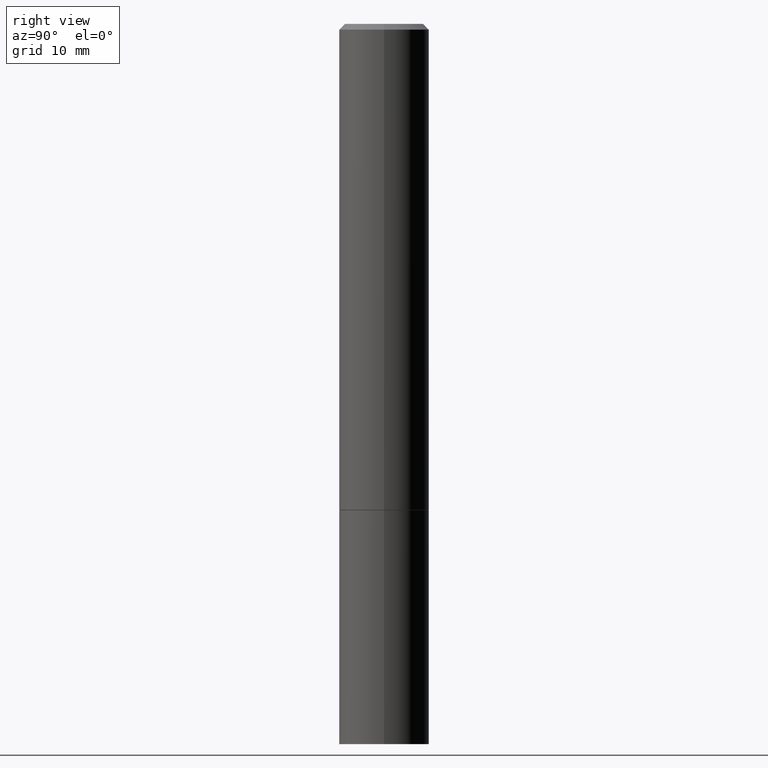
[diagram: clean part render]
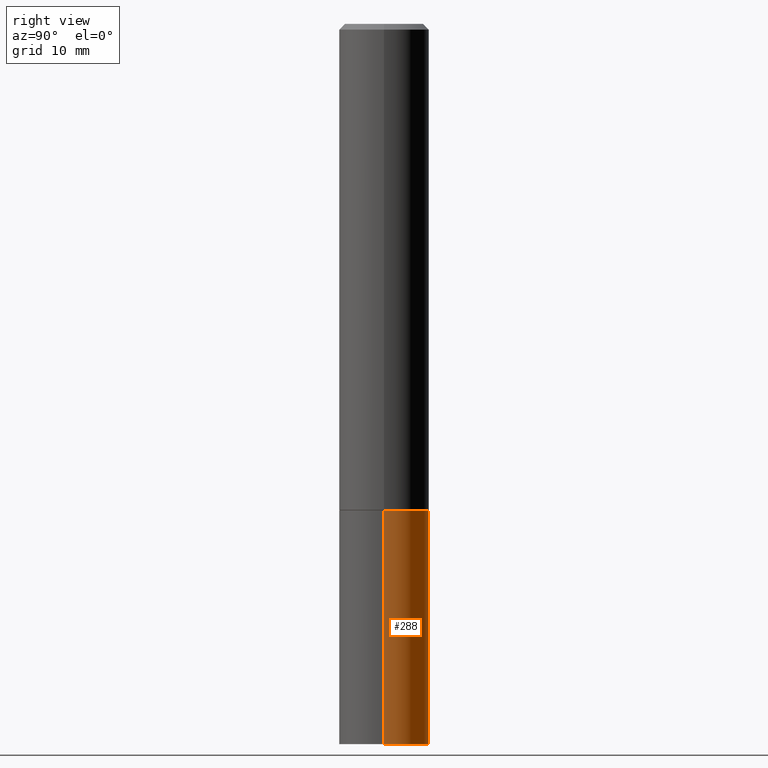
[diagram: same view with one face highlighted and labeled with its STEP entity id]
A machine part, right view. The second image highlights one B-rep face of the part: STEP entity #288.
In plain terms, the highlighted cylindrical surface (partial cylindrical patch) has radius 3.9688 mm, axis along (-0, 0, 1).
Its self-contained STEP definition (entity closure, byte-faithful):
#7 = ORIENTED_EDGE ( 'NONE', *, *, #207, .F. ) ;
#10 = CARTESIAN_POINT ( 'NONE',  ( -0.1562500000000000000, -6.200938898912389918E-15, -2.500000000000000000 ) ) ;
#36 = EDGE_CURVE ( 'NONE', #148, #159, #39, .T. ) ;
#39 = CIRCLE ( 'NONE', #335, 0.1562500000000000000 ) ;
#62 = CIRCLE ( 'NONE', #208, 0.1562500000000000000 ) ;
#70 = CARTESIAN_POINT ( 'NONE',  ( 6.113672015462842613E-29, -8.728703347107864943E-15, -2.500000000000000000 ) ) ;
#77 = FACE_OUTER_BOUND ( 'NONE', #307, .T. ) ;
#79 = VECTOR ( 'NONE', #272, 39.37007874015748143 ) ;
#94 = LINE ( 'NONE', #323, #202 ) ;
#131 = VERTEX_POINT ( 'NONE', #180 ) ;
#132 = DIRECTION ( 'NONE',  ( 1.000000000000000000, -6.982962677686266711E-15, 4.876176775795936353E-29 ) ) ;
#136 = EDGE_CURVE ( 'NONE', #159, #155, #204, .T. ) ;
#148 = VERTEX_POINT ( 'NONE', #270 ) ;
#155 = VERTEX_POINT ( 'NONE', #210 ) ;
#159 = VERTEX_POINT ( 'NONE', #10 ) ;
#174 = DIRECTION ( 'NONE',  ( -2.445468806185136597E-29, 3.491481338843145583E-15, 1.000000000000000000 ) ) ;
#180 = CARTESIAN_POINT ( 'NONE',  ( 0.1562500000000000000, -6.984708418355709513E-15, -1.688000000000000167 ) ) ;
#192 = DIRECTION ( 'NONE',  ( -2.445468806185136597E-29, 3.491481338843145583E-15, 1.000000000000000000 ) ) ;
#197 = EDGE_CURVE ( 'NONE', #148, #131, #94, .T. ) ;
#202 = VECTOR ( 'NONE', #298, 39.37007874015748143 ) ;
#204 = LINE ( 'NONE', #317, #79 ) ;
#207 = EDGE_CURVE ( 'NONE', #131, #155, #62, .T. ) ;
#208 = AXIS2_PLACEMENT_3D ( 'NONE', #324, #353, #336 ) ;
#210 = CARTESIAN_POINT ( 'NONE',  ( -0.1562500000000000000, -6.200938898912389918E-15, -1.688000000000000167 ) ) ;
#248 = CYLINDRICAL_SURFACE ( 'NONE', #339, 0.1562500000000000000 ) ;
#249 = ORIENTED_EDGE ( 'NONE', *, *, #197, .F. ) ;
#270 = CARTESIAN_POINT ( 'NONE',  ( 0.1562500000000000000, -9.819791265496344905E-15, -2.500000000000000000 ) ) ;
#272 = DIRECTION ( 'NONE',  ( -2.445468806185136877E-29, 3.491481338843145188E-15, 1.000000000000000000 ) ) ;
#288 = ADVANCED_FACE ( 'NONE', ( #77 ), #248, .T. ) ;
#292 = DIRECTION ( 'NONE',  ( 1.000000000000000000, -6.982962677686269077E-15, 0.000000000000000000 ) ) ;
#294 = ORIENTED_EDGE ( 'NONE', *, *, #136, .T. ) ;
#298 = DIRECTION ( 'NONE',  ( -2.445468806185136877E-29, 3.491481338843145188E-15, 1.000000000000000000 ) ) ;
#307 = EDGE_LOOP ( 'NONE', ( #363, #294, #7, #249 ) ) ;
#317 = CARTESIAN_POINT ( 'NONE',  ( -0.1562500000000000000, 1.110223024625156540E-15, -7.685836078523291160E-30 ) ) ;
#323 = CARTESIAN_POINT ( 'NONE',  ( 0.1562500000000000000, -1.091087918388479174E-15, 7.619026212181150377E-30 ) ) ;
#324 = CARTESIAN_POINT ( 'NONE',  ( 4.127951344840510809E-29, -5.893620499967230340E-15, -1.688000000000000167 ) ) ;
#335 = AXIS2_PLACEMENT_3D ( 'NONE', #70, #174, #292 ) ;
#336 = DIRECTION ( 'NONE',  ( 1.000000000000000000, -6.982962677686269077E-15, 0.000000000000000000 ) ) ;
#339 = AXIS2_PLACEMENT_3D ( 'NONE', #357, #192, #132 ) ;
#353 = DIRECTION ( 'NONE',  ( -2.445468806185136597E-29, 3.491481338843145583E-15, 1.000000000000000000 ) ) ;
#357 = CARTESIAN_POINT ( 'NONE',  ( 0.000000000000000000, 0.000000000000000000, 0.000000000000000000 ) ) ;
#363 = ORIENTED_EDGE ( 'NONE', *, *, #36, .T. ) ;